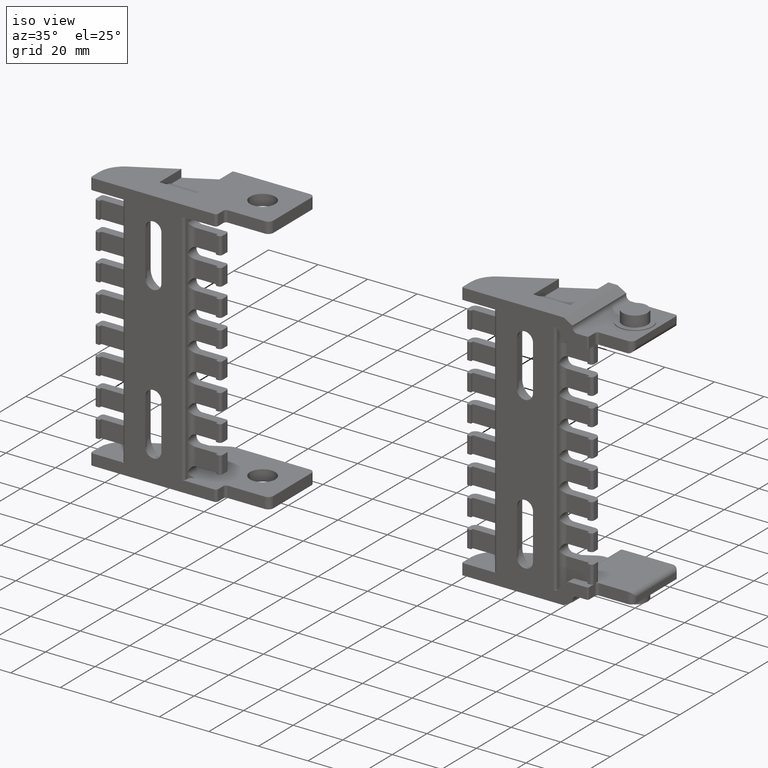
[diagram: clean part render]
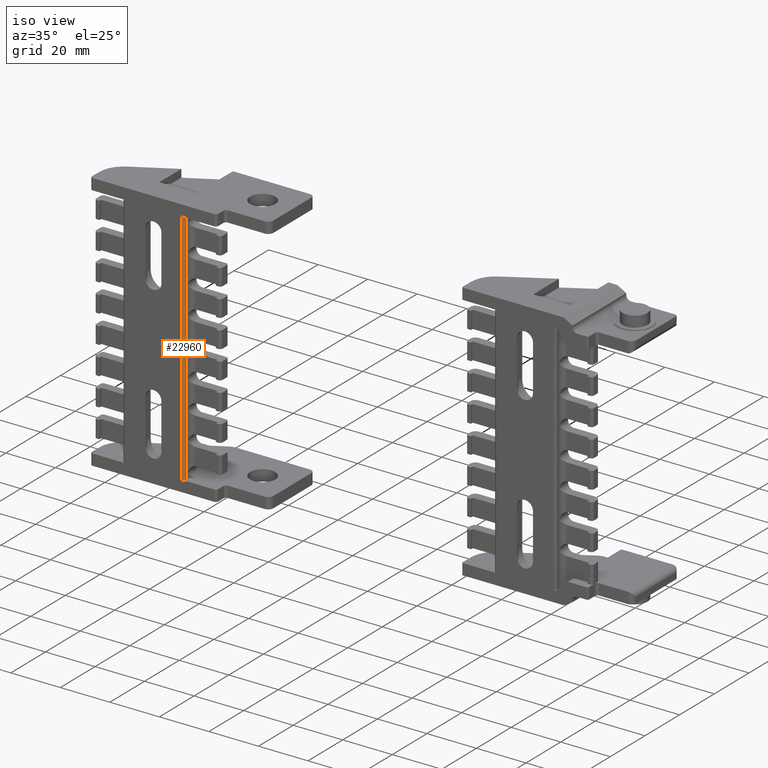
[diagram: same view with one face highlighted and labeled with its STEP entity id]
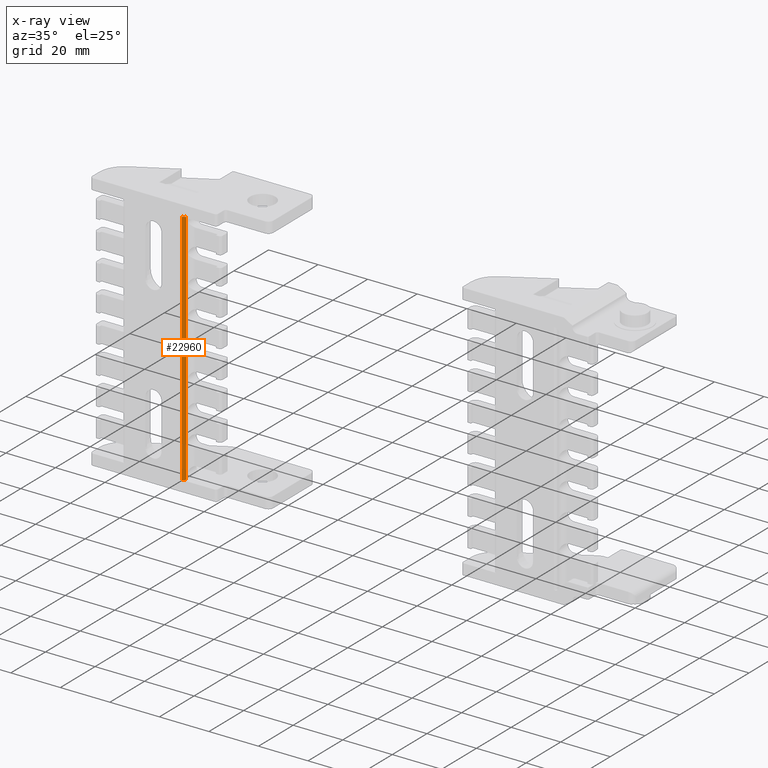
[diagram: x-ray of the same camera — body ghosted, the highlighted face saturated]
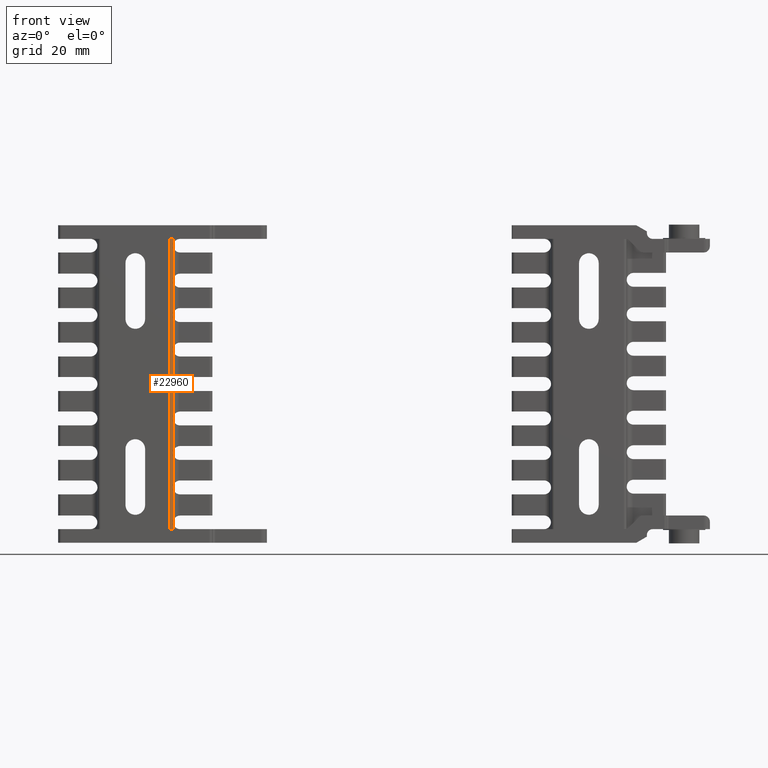
[diagram: same view with one face highlighted and labeled with its STEP entity id]
A machine part, iso view. The second image highlights one B-rep face of the part: STEP entity #22960.
The next image is the same camera in x-ray: the body ghosted, the highlighted face saturated — about 0% of this face is hidden behind the body in this view.
A second angle (front view) of the same face is appended — the face is thin or edge-on in the first view.
In plain terms, the highlighted cylindrical surface (edge-blend (fillet) strip) has radius 1 mm, axis along (0, 0, 1).
Its self-contained STEP definition (entity closure, byte-faithful):
#212 = ORIENTED_EDGE ( 'NONE', *, *, #21451, .F. ) ;
#1170 = ORIENTED_EDGE ( 'NONE', *, *, #6687, .T. ) ;
#1210 = EDGE_LOOP ( 'NONE', ( #12079, #212, #13189, #1170 ) ) ;
#1270 = CARTESIAN_POINT ( 'NONE',  ( -168.9999999999999716, -17.50000000000000000, 48.00000000000000000 ) ) ;
#1466 = EDGE_CURVE ( 'NONE', #8377, #9941, #18098, .T. ) ;
#1715 = LINE ( 'NONE', #1835, #21835 ) ;
#1835 = CARTESIAN_POINT ( 'NONE',  ( -169.9999999999999716, -18.50000000000000355, -48.00000000000000000 ) ) ;
#3260 = VECTOR ( 'NONE', #3758, 1000.000000000000000 ) ;
#3758 = DIRECTION ( 'NONE',  ( 0.000000000000000000, 0.000000000000000000, 1.000000000000000000 ) ) ;
#4779 = AXIS2_PLACEMENT_3D ( 'NONE', #20132, #17857, #18099 ) ;
#4845 = DIRECTION ( 'NONE',  ( 0.000000000000000000, 0.000000000000000000, 1.000000000000000000 ) ) ;
#5078 = DIRECTION ( 'NONE',  ( 1.554312234477622948E-12, 1.000000000000000000, 0.000000000000000000 ) ) ;
#6468 = CARTESIAN_POINT ( 'NONE',  ( -169.9999999999999716, -18.50000000000000355, 48.00000000000000000 ) ) ;
#6687 = EDGE_CURVE ( 'NONE', #9498, #9941, #21748, .T. ) ;
#6806 = VERTEX_POINT ( 'NONE', #9111 ) ;
#7408 = DIRECTION ( 'NONE',  ( 0.000000000000000000, 0.000000000000000000, -1.000000000000000000 ) ) ;
#8377 = VERTEX_POINT ( 'NONE', #6468 ) ;
#8396 = CYLINDRICAL_SURFACE ( 'NONE', #19606, 0.9999999999984534593 ) ;
#8716 = CARTESIAN_POINT ( 'NONE',  ( -169.9999999999984368, -17.50000000000155609, -48.00000000000000000 ) ) ;
#8868 = CARTESIAN_POINT ( 'NONE',  ( -168.9999999999999716, -17.50000000000000000, -48.00000000000000000 ) ) ;
#9111 = CARTESIAN_POINT ( 'NONE',  ( -169.9999999999999716, -18.50000000000000355, -48.00000000000000000 ) ) ;
#9498 = VERTEX_POINT ( 'NONE', #15957 ) ;
#9941 = VERTEX_POINT ( 'NONE', #1270 ) ;
#12079 = ORIENTED_EDGE ( 'NONE', *, *, #1466, .F. ) ;
#13189 = ORIENTED_EDGE ( 'NONE', *, *, #18147, .F. ) ;
#14101 = CARTESIAN_POINT ( 'NONE',  ( -169.9999999999984368, -17.50000000000155609, 0.000000000000000000 ) ) ;
#14896 = DIRECTION ( 'NONE',  ( 1.554312234477622948E-12, 1.000000000000000000, 0.000000000000000000 ) ) ;
#15957 = CARTESIAN_POINT ( 'NONE',  ( -168.9999999999999716, -17.50000000000000000, -48.00000000000000000 ) ) ;
#16255 = DIRECTION ( 'NONE',  ( 0.000000000000000000, 0.000000000000000000, 1.000000000000000000 ) ) ;
#17469 = FACE_OUTER_BOUND ( 'NONE', #1210, .T. ) ;
#17590 = CIRCLE ( 'NONE', #17974, 0.9999999999984534593 ) ;
#17857 = DIRECTION ( 'NONE',  ( 0.000000000000000000, 0.000000000000000000, 1.000000000000000000 ) ) ;
#17974 = AXIS2_PLACEMENT_3D ( 'NONE', #8716, #7408, #14896 ) ;
#18098 = CIRCLE ( 'NONE', #4779, 0.9999999999984534593 ) ;
#18099 = DIRECTION ( 'NONE',  ( 1.554312234477622948E-12, 1.000000000000000000, 0.000000000000000000 ) ) ;
#18147 = EDGE_CURVE ( 'NONE', #9498, #6806, #17590, .T. ) ;
#19606 = AXIS2_PLACEMENT_3D ( 'NONE', #14101, #4845, #5078 ) ;
#20132 = CARTESIAN_POINT ( 'NONE',  ( -169.9999999999984368, -17.50000000000155609, 48.00000000000000000 ) ) ;
#21451 = EDGE_CURVE ( 'NONE', #6806, #8377, #1715, .T. ) ;
#21748 = LINE ( 'NONE', #8868, #3260 ) ;
#21835 = VECTOR ( 'NONE', #16255, 1000.000000000000000 ) ;
#22960 = ADVANCED_FACE ( 'NONE', ( #17469 ), #8396, .T. ) ;